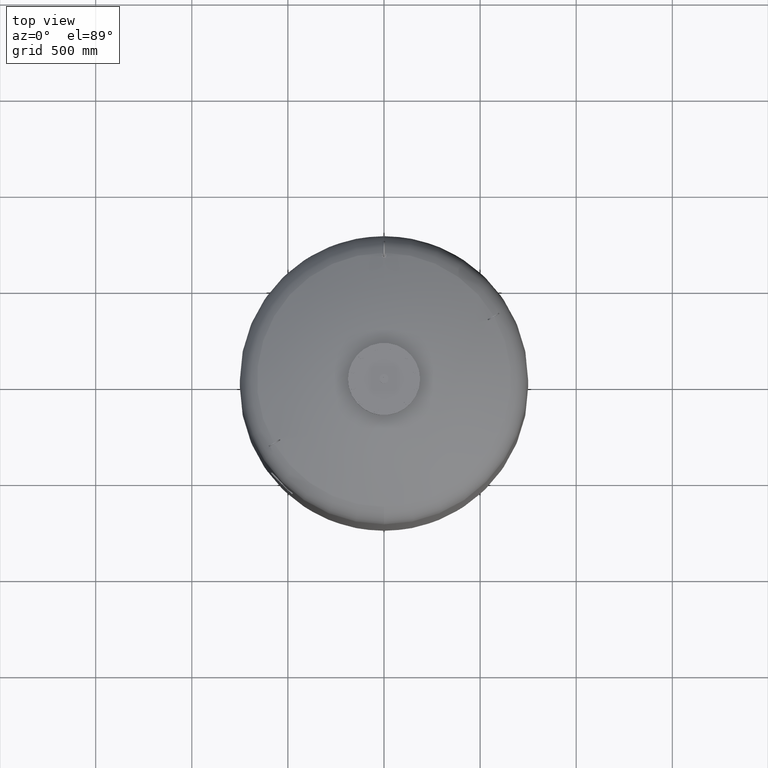
[diagram: clean part render]
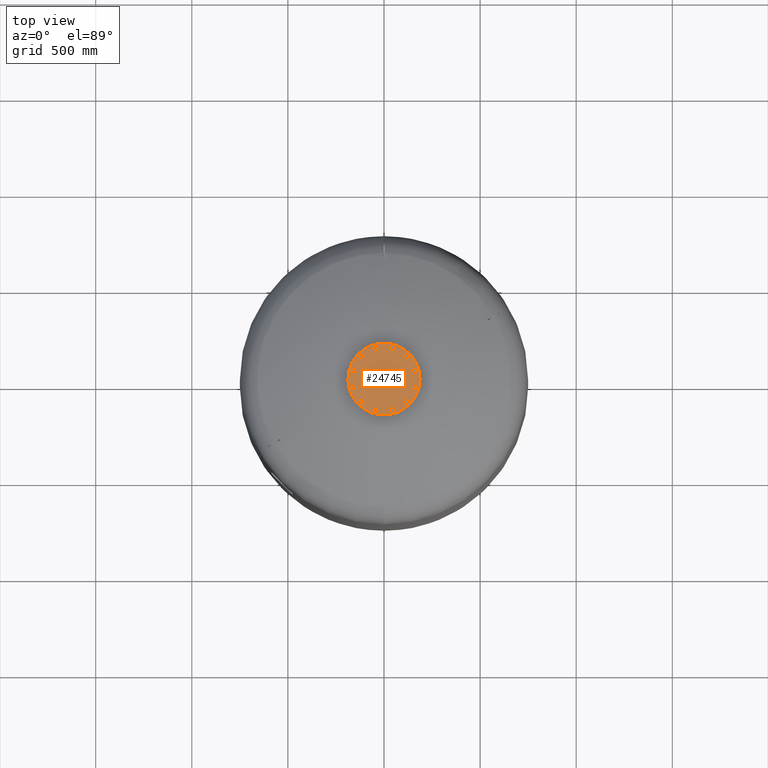
[diagram: same view with one face highlighted and labeled with its STEP entity id]
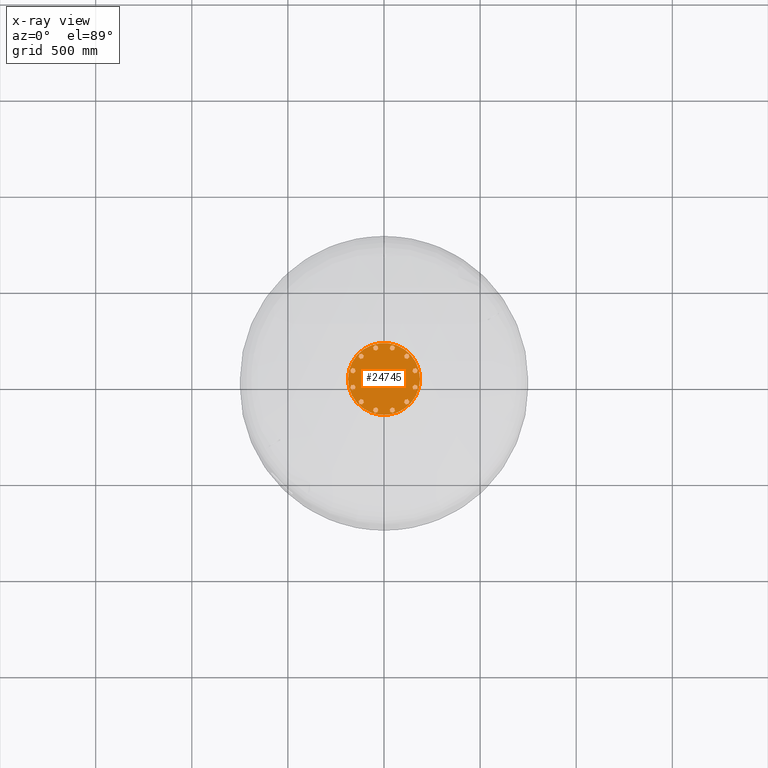
[diagram: x-ray of the same camera — body ghosted, the highlighted face saturated]
A machine part, top view. The second image highlights one B-rep face of the part: STEP entity #24745.
The next image is the same camera in x-ray: the body ghosted, the highlighted face saturated — about 0% of this face is hidden behind the body in this view.
In plain terms, the highlighted planar face has unit normal (0, 0, 1).
Its self-contained STEP definition (entity closure, byte-faithful):
#16983=CARTESIAN_POINT('',(-187.500000000000000,0.0,3056.0));
#16984=VERTEX_POINT('',#16983);
#17000=CARTESIAN_POINT('',(187.500000000000000,-2.296137E-014,3056.0));
#17001=VERTEX_POINT('',#17000);
#17008=CARTESIAN_POINT('',(0.0,0.0,3056.0));
#17009=DIRECTION('',(0.0,0.0,-1.0));
#17010=DIRECTION('',(-1.0,0.0,0.0));
#17011=AXIS2_PLACEMENT_3D('',#17008,#17009,#17010);
#17012=CIRCLE('',#17011,187.500000000000000);
#17013=EDGE_CURVE('',#17001,#16984,#17012,.T.);
#22239=CARTESIAN_POINT('',(157.729139400922860,30.104983413641008,3056.0));
#22240=VERTEX_POINT('',#22239);
#22241=CARTESIAN_POINT('',(148.288440171855850,40.247625971983268,3056.0));
#22242=VERTEX_POINT('',#22241);
#22243=CARTESIAN_POINT('',(157.729139400922860,30.104983413641008,3056.0));
#22244=DIRECTION('',(-0.681323780155013,0.731982176419128,0.0));
#22245=VECTOR('',#22244,13.856406460551090);
#22246=LINE('',#22243,#22245);
#22247=EDGE_CURVE('',#22240,#22242,#22246,.T.);
#22279=CARTESIAN_POINT('',(171.233275132485970,33.209547496330110,3056.0));
#22280=VERTEX_POINT('',#22279);
#22281=CARTESIAN_POINT('',(171.233275132485970,33.209547496330110,3056.0));
#22282=DIRECTION('',(-0.974577049973894,-0.224052613607123,0.0));
#22283=VECTOR('',#22282,13.856406460551119);
#22284=LINE('',#22281,#22283);
#22285=EDGE_CURVE('',#22280,#22240,#22284,.T.);
#22310=CARTESIAN_POINT('',(175.296711634982050,46.456754137361422,3056.0));
#22311=VERTEX_POINT('',#22310);
#22312=CARTESIAN_POINT('',(175.296711634982050,46.456754137361422,3056.0));
#22313=DIRECTION('',(-0.293253269818881,-0.956034790026249,0.0));
#22314=VECTOR('',#22313,13.856406460551076);
#22315=LINE('',#22312,#22314);
#22316=EDGE_CURVE('',#22311,#22280,#22315,.T.);
#22341=CARTESIAN_POINT('',(152.351876674351930,53.494832613014587,3056.0));
#22342=VERTEX_POINT('',#22341);
#22343=CARTESIAN_POINT('',(148.288440171855850,40.247625971983268,3056.0));
#22344=DIRECTION('',(0.293253269818881,0.956034790026249,0.0));
#22345=VECTOR('',#22344,13.856406460551083);
#22346=LINE('',#22343,#22345);
#22347=EDGE_CURVE('',#22242,#22342,#22346,.T.);
#22372=CARTESIAN_POINT('',(165.856012405915040,56.599396695703689,3056.0));
#22373=VERTEX_POINT('',#22372);
#22374=CARTESIAN_POINT('',(152.351876674351930,53.494832613014587,3056.0));
#22375=DIRECTION('',(0.974577049973894,0.224052613607123,0.0));
#22376=VECTOR('',#22375,13.856406460551119);
#22377=LINE('',#22374,#22376);
#22378=EDGE_CURVE('',#22342,#22373,#22377,.T.);
#22403=CARTESIAN_POINT('',(165.856012405915040,56.599396695703689,3056.0));
#22404=DIRECTION('',(0.681323780155012,-0.731982176419129,0.0));
#22405=VECTOR('',#22404,13.856406460551096);
#22406=LINE('',#22403,#22405);
#22407=EDGE_CURVE('',#22373,#22311,#22406,.T.);
#22439=CARTESIAN_POINT('',(121.544949931435720,104.936250117183760,3056.0));
#22440=VERTEX_POINT('',#22439);
#22441=CARTESIAN_POINT('',(108.297743290404380,108.999686619679820,3056.0));
#22442=VERTEX_POINT('',#22441);
#22443=CARTESIAN_POINT('',(121.544949931435720,104.936250117183760,3056.0));
#22444=DIRECTION('',(-0.956034790026250,0.293253269818880,0.0));
#22445=VECTOR('',#22444,13.856406460551101);
#22446=LINE('',#22443,#22445);
#22447=EDGE_CURVE('',#22440,#22442,#22446,.T.);
#22479=CARTESIAN_POINT('',(131.687592489777960,114.376949346250780,3056.0));
#22480=VERTEX_POINT('',#22479);
#22481=CARTESIAN_POINT('',(131.687592489777960,114.376949346250780,3056.0));
#22482=DIRECTION('',(-0.731982176419127,-0.681323780155014,0.0));
#22483=VECTOR('',#22482,13.856406460551080);
#22484=LINE('',#22481,#22483);
#22485=EDGE_CURVE('',#22480,#22440,#22484,.T.);
#22510=CARTESIAN_POINT('',(128.583028407088880,127.881085077813880,3056.0));
#22511=VERTEX_POINT('',#22510);
#22512=CARTESIAN_POINT('',(128.583028407088880,127.881085077813880,3056.0));
#22513=DIRECTION('',(0.224052613607122,-0.974577049973894,0.0));
#22514=VECTOR('',#22513,13.856406460551099);
#22515=LINE('',#22512,#22514);
#22516=EDGE_CURVE('',#22511,#22480,#22515,.T.);
#22541=CARTESIAN_POINT('',(105.193179207715300,122.503822351242900,3056.0));
#22542=VERTEX_POINT('',#22541);
#22543=CARTESIAN_POINT('',(108.297743290404380,108.999686619679820,3056.0));
#22544=DIRECTION('',(-0.224052613607122,0.974577049973894,0.0));
#22545=VECTOR('',#22544,13.856406460551087);
#22546=LINE('',#22543,#22545);
#22547=EDGE_CURVE('',#22442,#22542,#22546,.T.);
#22572=CARTESIAN_POINT('',(115.335821766057560,131.944521580309950,3056.0));
#22573=VERTEX_POINT('',#22572);
#22574=CARTESIAN_POINT('',(105.193179207715300,122.503822351242900,3056.0));
#22575=DIRECTION('',(0.731982176419127,0.681323780155014,0.0));
#22576=VECTOR('',#22575,13.856406460551121);
#22577=LINE('',#22574,#22576);
#22578=EDGE_CURVE('',#22542,#22573,#22577,.T.);
#22603=CARTESIAN_POINT('',(115.335821766057560,131.944521580309950,3056.0));
#22604=DIRECTION('',(0.956034790026249,-0.293253269818881,0.0));
#22605=VECTOR('',#22604,13.856406460551076);
#22606=LINE('',#22603,#22605);
#22607=EDGE_CURVE('',#22573,#22511,#22606,.T.);
#22639=CARTESIAN_POINT('',(52.792889283739193,151.649933345076730,3056.0));
#22640=VERTEX_POINT('',#22639);
#22641=CARTESIAN_POINT('',(39.288753552176118,148.545369262387680,3056.0));
#22642=VERTEX_POINT('',#22641);
#22643=CARTESIAN_POINT('',(52.792889283739193,151.649933345076730,3056.0));
#22644=DIRECTION('',(-0.974577049973894,-0.224052613607120,0.0));
#22645=VECTOR('',#22644,13.856406460551073);
#22646=LINE('',#22643,#22645);
#22647=EDGE_CURVE('',#22640,#22642,#22646,.T.);
#22679=CARTESIAN_POINT('',(56.856325786235274,164.897139986108100,3056.0));
#22680=VERTEX_POINT('',#22679);
#22681=CARTESIAN_POINT('',(56.856325786235274,164.897139986108100,3056.0));
#22682=DIRECTION('',(-0.293253269818881,-0.956034790026249,0.0));
#22683=VECTOR('',#22682,13.856406460551133);
#22684=LINE('',#22681,#22683);
#22685=EDGE_CURVE('',#22680,#22640,#22684,.T.);
#22710=CARTESIAN_POINT('',(47.415626557168267,175.039782544450330,3056.0));
#22711=VERTEX_POINT('',#22710);
#22712=CARTESIAN_POINT('',(47.415626557168267,175.039782544450330,3056.0));
#22713=DIRECTION('',(0.681323780155014,-0.731982176419128,0.0));
#22714=VECTOR('',#22713,13.856406460551069);
#22715=LINE('',#22712,#22714);
#22716=EDGE_CURVE('',#22711,#22680,#22715,.T.);
#22741=CARTESIAN_POINT('',(29.848054323109103,158.688011820729910,3056.0));
#22742=VERTEX_POINT('',#22741);
#22743=CARTESIAN_POINT('',(39.288753552176118,148.545369262387680,3056.0));
#22744=DIRECTION('',(-0.681323780155014,0.731982176419127,0.0));
#22745=VECTOR('',#22744,13.856406460551076);
#22746=LINE('',#22743,#22745);
#22747=EDGE_CURVE('',#22642,#22742,#22746,.T.);
#22772=CARTESIAN_POINT('',(33.911490825605156,171.935218461761250,3056.0));
#22773=VERTEX_POINT('',#22772);
#22774=CARTESIAN_POINT('',(29.848054323109103,158.688011820729910,3056.0));
#22775=DIRECTION('',(0.293253269818879,0.956034790026250,0.0));
#22776=VECTOR('',#22775,13.856406460551097);
#22777=LINE('',#22774,#22776);
#22778=EDGE_CURVE('',#22742,#22773,#22777,.T.);
#22803=CARTESIAN_POINT('',(33.911490825605156,171.935218461761250,3056.0));
#22804=DIRECTION('',(0.974577049973894,0.224052613607121,0.0));
#22805=VECTOR('',#22804,13.856406460551113);
#22806=LINE('',#22803,#22805);
#22807=EDGE_CURVE('',#22773,#22711,#22806,.T.);
#22839=CARTESIAN_POINT('',(-30.104983413641008,157.729139400922860,3056.0));
#22840=VERTEX_POINT('',#22839);
#22841=CARTESIAN_POINT('',(-40.247625971983268,148.288440171855850,3056.0));
#22842=VERTEX_POINT('',#22841);
#22843=CARTESIAN_POINT('',(-30.104983413641008,157.729139400922860,3056.0));
#22844=DIRECTION('',(-0.731982176419128,-0.681323780155013,0.0));
#22845=VECTOR('',#22844,13.856406460551090);
#22846=LINE('',#22843,#22845);
#22847=EDGE_CURVE('',#22840,#22842,#22846,.T.);
#22879=CARTESIAN_POINT('',(-33.209547496330110,171.233275132485970,3056.0));
#22880=VERTEX_POINT('',#22879);
#22881=CARTESIAN_POINT('',(-33.209547496330110,171.233275132485970,3056.0));
#22882=DIRECTION('',(0.224052613607123,-0.974577049973894,0.0));
#22883=VECTOR('',#22882,13.856406460551119);
#22884=LINE('',#22881,#22883);
#22885=EDGE_CURVE('',#22880,#22840,#22884,.T.);
#22910=CARTESIAN_POINT('',(-46.456754137361422,175.296711634982050,3056.0));
#22911=VERTEX_POINT('',#22910);
#22912=CARTESIAN_POINT('',(-46.456754137361422,175.296711634982050,3056.0));
#22913=DIRECTION('',(0.956034790026249,-0.293253269818881,0.0));
#22914=VECTOR('',#22913,13.856406460551076);
#22915=LINE('',#22912,#22914);
#22916=EDGE_CURVE('',#22911,#22880,#22915,.T.);
#22941=CARTESIAN_POINT('',(-53.494832613014587,152.351876674351930,3056.0));
#22942=VERTEX_POINT('',#22941);
#22943=CARTESIAN_POINT('',(-40.247625971983268,148.288440171855850,3056.0));
#22944=DIRECTION('',(-0.956034790026249,0.293253269818881,0.0));
#22945=VECTOR('',#22944,13.856406460551083);
#22946=LINE('',#22943,#22945);
#22947=EDGE_CURVE('',#22842,#22942,#22946,.T.);
#22972=CARTESIAN_POINT('',(-56.599396695703689,165.856012405915040,3056.0));
#22973=VERTEX_POINT('',#22972);
#22974=CARTESIAN_POINT('',(-53.494832613014587,152.351876674351930,3056.0));
#22975=DIRECTION('',(-0.224052613607123,0.974577049973894,0.0));
#22976=VECTOR('',#22975,13.856406460551119);
#22977=LINE('',#22974,#22976);
#22978=EDGE_CURVE('',#22942,#22973,#22977,.T.);
#23003=CARTESIAN_POINT('',(-56.599396695703689,165.856012405915040,3056.0));
#23004=DIRECTION('',(0.731982176419129,0.681323780155012,0.0));
#23005=VECTOR('',#23004,13.856406460551096);
#23006=LINE('',#23003,#23005);
#23007=EDGE_CURVE('',#22973,#22911,#23006,.T.);
#23039=CARTESIAN_POINT('',(-104.936250117183700,121.544949931435750,3056.0));
#23040=VERTEX_POINT('',#23039);
#23041=CARTESIAN_POINT('',(-108.999686619679760,108.297743290404440,3056.0));
#23042=VERTEX_POINT('',#23041);
#23043=CARTESIAN_POINT('',(-104.936250117183700,121.544949931435750,3056.0));
#23044=DIRECTION('',(-0.293253269818880,-0.956034790026249,0.0));
#23045=VECTOR('',#23044,13.856406460551073);
#23046=LINE('',#23043,#23045);
#23047=EDGE_CURVE('',#23040,#23042,#23046,.T.);
#23079=CARTESIAN_POINT('',(-114.376949346250730,131.687592489778010,3056.0));
#23080=VERTEX_POINT('',#23079);
#23081=CARTESIAN_POINT('',(-114.376949346250730,131.687592489778010,3056.0));
#23082=DIRECTION('',(0.681323780155013,-0.731982176419128,0.0));
#23083=VECTOR('',#23082,13.856406460551101);
#23084=LINE('',#23081,#23083);
#23085=EDGE_CURVE('',#23080,#23040,#23084,.T.);
#23110=CARTESIAN_POINT('',(-127.881085077813810,128.583028407088930,3056.0));
#23111=VERTEX_POINT('',#23110);
#23112=CARTESIAN_POINT('',(-127.881085077813810,128.583028407088930,3056.0));
#23113=DIRECTION('',(0.974577049973894,0.224052613607122,0.0));
#23114=VECTOR('',#23113,13.856406460551087);
#23115=LINE('',#23112,#23114);
#23116=EDGE_CURVE('',#23111,#23080,#23115,.T.);
#23141=CARTESIAN_POINT('',(-122.503822351242850,105.193179207715360,3056.0));
#23142=VERTEX_POINT('',#23141);
#23143=CARTESIAN_POINT('',(-108.999686619679760,108.297743290404440,3056.0));
#23144=DIRECTION('',(-0.974577049973894,-0.224052613607122,0.0));
#23145=VECTOR('',#23144,13.856406460551087);
#23146=LINE('',#23143,#23145);
#23147=EDGE_CURVE('',#23042,#23142,#23146,.T.);
#23172=CARTESIAN_POINT('',(-131.944521580309900,115.335821766057620,3056.0));
#23173=VERTEX_POINT('',#23172);
#23174=CARTESIAN_POINT('',(-122.503822351242850,105.193179207715360,3056.0));
#23175=DIRECTION('',(-0.681323780155014,0.731982176419127,0.0));
#23176=VECTOR('',#23175,13.856406460551121);
#23177=LINE('',#23174,#23176);
#23178=EDGE_CURVE('',#23142,#23173,#23177,.T.);
#23203=CARTESIAN_POINT('',(-131.944521580309900,115.335821766057620,3056.0));
#23204=DIRECTION('',(0.293253269818882,0.956034790026249,0.0));
#23205=VECTOR('',#23204,13.856406460551081);
#23206=LINE('',#23203,#23205);
#23207=EDGE_CURVE('',#23173,#23111,#23206,.T.);
#23239=CARTESIAN_POINT('',(-151.649933345076730,52.792889283739214,3056.0));
#23240=VERTEX_POINT('',#23239);
#23241=CARTESIAN_POINT('',(-148.545369262387650,39.288753552176125,3056.0));
#23242=VERTEX_POINT('',#23241);
#23243=CARTESIAN_POINT('',(-151.649933345076730,52.792889283739214,3056.0));
#23244=DIRECTION('',(0.224052613607122,-0.974577049973894,0.0));
#23245=VECTOR('',#23244,13.856406460551092);
#23246=LINE('',#23243,#23245);
#23247=EDGE_CURVE('',#23240,#23242,#23246,.T.);
#23279=CARTESIAN_POINT('',(-164.897139986108100,56.856325786235296,3056.0));
#23280=VERTEX_POINT('',#23279);
#23281=CARTESIAN_POINT('',(-164.897139986108100,56.856325786235296,3056.0));
#23282=DIRECTION('',(0.956034790026249,-0.293253269818881,0.0));
#23283=VECTOR('',#23282,13.856406460551133);
#23284=LINE('',#23281,#23283);
#23285=EDGE_CURVE('',#23280,#23240,#23284,.T.);
#23310=CARTESIAN_POINT('',(-175.039782544450300,47.415626557168260,3056.0));
#23311=VERTEX_POINT('',#23310);
#23312=CARTESIAN_POINT('',(-175.039782544450300,47.415626557168260,3056.0));
#23313=DIRECTION('',(0.731982176419126,0.681323780155016,0.0));
#23314=VECTOR('',#23313,13.856406460551069);
#23315=LINE('',#23312,#23314);
#23316=EDGE_CURVE('',#23311,#23280,#23315,.T.);
#23341=CARTESIAN_POINT('',(-158.688011820729910,29.848054323109110,3056.0));
#23342=VERTEX_POINT('',#23341);
#23343=CARTESIAN_POINT('',(-148.545369262387650,39.288753552176125,3056.0));
#23344=DIRECTION('',(-0.731982176419128,-0.681323780155013,0.0));
#23345=VECTOR('',#23344,13.856406460551096);
#23346=LINE('',#23343,#23345);
#23347=EDGE_CURVE('',#23242,#23342,#23346,.T.);
#23372=CARTESIAN_POINT('',(-171.935218461761250,33.911490825605171,3056.0));
#23373=VERTEX_POINT('',#23372);
#23374=CARTESIAN_POINT('',(-158.688011820729910,29.848054323109110,3056.0));
#23375=DIRECTION('',(-0.956034790026250,0.293253269818880,0.0));
#23376=VECTOR('',#23375,13.856406460551101);
#23377=LINE('',#23374,#23376);
#23378=EDGE_CURVE('',#23342,#23373,#23377,.T.);
#23403=CARTESIAN_POINT('',(-171.935218461761250,33.911490825605171,3056.0));
#23404=DIRECTION('',(-0.224052613607120,0.974577049973894,0.0));
#23405=VECTOR('',#23404,13.856406460551087);
#23406=LINE('',#23403,#23405);
#23407=EDGE_CURVE('',#23373,#23311,#23406,.T.);
#23439=CARTESIAN_POINT('',(-157.729139400922860,-30.104983413640987,3056.0));
#23440=VERTEX_POINT('',#23439);
#23441=CARTESIAN_POINT('',(-148.288440171855850,-40.247625971983247,3056.0));
#23442=VERTEX_POINT('',#23441);
#23443=CARTESIAN_POINT('',(-157.729139400922860,-30.104983413640987,3056.0));
#23444=DIRECTION('',(0.681323780155013,-0.731982176419128,0.0));
#23445=VECTOR('',#23444,13.856406460551090);
#23446=LINE('',#23443,#23445);
#23447=EDGE_CURVE('',#23440,#23442,#23446,.T.);
#23479=CARTESIAN_POINT('',(-171.233275132486000,-33.209547496330096,3056.0));
#23480=VERTEX_POINT('',#23479);
#23481=CARTESIAN_POINT('',(-171.233275132486000,-33.209547496330096,3056.0));
#23482=DIRECTION('',(0.974577049973894,0.224052613607123,0.0));
#23483=VECTOR('',#23482,13.856406460551147);
#23484=LINE('',#23481,#23483);
#23485=EDGE_CURVE('',#23480,#23440,#23484,.T.);
#23510=CARTESIAN_POINT('',(-175.296711634982050,-46.456754137361401,3056.0));
#23511=VERTEX_POINT('',#23510);
#23512=CARTESIAN_POINT('',(-175.296711634982050,-46.456754137361401,3056.0));
#23513=DIRECTION('',(0.293253269818880,0.956034790026250,0.0));
#23514=VECTOR('',#23513,13.856406460551062);
#23515=LINE('',#23512,#23514);
#23516=EDGE_CURVE('',#23511,#23480,#23515,.T.);
#23541=CARTESIAN_POINT('',(-152.351876674351960,-53.494832613014580,3056.0));
#23542=VERTEX_POINT('',#23541);
#23543=CARTESIAN_POINT('',(-148.288440171855850,-40.247625971983247,3056.0));
#23544=DIRECTION('',(-0.293253269818883,-0.956034790026249,0.0));
#23545=VECTOR('',#23544,13.856406460551106);
#23546=LINE('',#23543,#23545);
#23547=EDGE_CURVE('',#23442,#23542,#23546,.T.);
#23572=CARTESIAN_POINT('',(-165.856012405915070,-56.599396695703646,3056.0));
#23573=VERTEX_POINT('',#23572);
#23574=CARTESIAN_POINT('',(-152.351876674351960,-53.494832613014580,3056.0));
#23575=DIRECTION('',(-0.974577049973894,-0.224052613607121,0.0));
#23576=VECTOR('',#23575,13.856406460551110);
#23577=LINE('',#23574,#23576);
#23578=EDGE_CURVE('',#23542,#23573,#23577,.T.);
#23603=CARTESIAN_POINT('',(-165.856012405915070,-56.599396695703646,3056.0));
#23604=DIRECTION('',(-0.681323780155012,0.731982176419129,0.0));
#23605=VECTOR('',#23604,13.856406460551062);
#23606=LINE('',#23603,#23605);
#23607=EDGE_CURVE('',#23573,#23511,#23606,.T.);
#23639=CARTESIAN_POINT('',(-121.544949931435750,-104.936250117183680,3056.0));
#23640=VERTEX_POINT('',#23639);
#23641=CARTESIAN_POINT('',(-108.297743290404440,-108.999686619679760,3056.0));
#23642=VERTEX_POINT('',#23641);
#23643=CARTESIAN_POINT('',(-121.544949931435750,-104.936250117183680,3056.0));
#23644=DIRECTION('',(0.956034790026249,-0.293253269818882,0.0));
#23645=VECTOR('',#23644,13.856406460551081);
#23646=LINE('',#23643,#23645);
#23647=EDGE_CURVE('',#23640,#23642,#23646,.T.);
#23679=CARTESIAN_POINT('',(-131.687592489778010,-114.376949346250730,3056.0));
#23680=VERTEX_POINT('',#23679);
#23681=CARTESIAN_POINT('',(-131.687592489778010,-114.376949346250730,3056.0));
#23682=DIRECTION('',(0.731982176419127,0.681323780155014,0.0));
#23683=VECTOR('',#23682,13.856406460551121);
#23684=LINE('',#23681,#23683);
#23685=EDGE_CURVE('',#23680,#23640,#23684,.T.);
#23710=CARTESIAN_POINT('',(-128.583028407088930,-127.881085077813790,3056.0));
#23711=VERTEX_POINT('',#23710);
#23712=CARTESIAN_POINT('',(-128.583028407088930,-127.881085077813790,3056.0));
#23713=DIRECTION('',(-0.224052613607122,0.974577049973894,0.0));
#23714=VECTOR('',#23713,13.856406460551071);
#23715=LINE('',#23712,#23714);
#23716=EDGE_CURVE('',#23711,#23680,#23715,.T.);
#23741=CARTESIAN_POINT('',(-105.193179207715360,-122.503822351242850,3056.0));
#23742=VERTEX_POINT('',#23741);
#23743=CARTESIAN_POINT('',(-108.297743290404440,-108.999686619679760,3056.0));
#23744=DIRECTION('',(0.224052613607122,-0.974577049973894,0.0));
#23745=VECTOR('',#23744,13.856406460551087);
#23746=LINE('',#23743,#23745);
#23747=EDGE_CURVE('',#23642,#23742,#23746,.T.);
#23772=CARTESIAN_POINT('',(-115.335821766057620,-131.944521580309900,3056.0));
#23773=VERTEX_POINT('',#23772);
#23774=CARTESIAN_POINT('',(-105.193179207715360,-122.503822351242850,3056.0));
#23775=DIRECTION('',(-0.731982176419127,-0.681323780155014,0.0));
#23776=VECTOR('',#23775,13.856406460551121);
#23777=LINE('',#23774,#23776);
#23778=EDGE_CURVE('',#23742,#23773,#23777,.T.);
#23803=CARTESIAN_POINT('',(-115.335821766057620,-131.944521580309900,3056.0));
#23804=DIRECTION('',(-0.956034790026249,0.293253269818883,0.0));
#23805=VECTOR('',#23804,13.856406460551085);
#23806=LINE('',#23803,#23805);
#23807=EDGE_CURVE('',#23773,#23711,#23806,.T.);
#23839=CARTESIAN_POINT('',(-52.792889283739228,-151.649933345076730,3056.0));
#23840=VERTEX_POINT('',#23839);
#23841=CARTESIAN_POINT('',(-39.288753552176132,-148.545369262387680,3056.0));
#23842=VERTEX_POINT('',#23841);
#23843=CARTESIAN_POINT('',(-52.792889283739228,-151.649933345076730,3056.0));
#23844=DIRECTION('',(0.974577049973894,0.224052613607120,0.0));
#23845=VECTOR('',#23844,13.856406460551094);
#23846=LINE('',#23843,#23845);
#23847=EDGE_CURVE('',#23840,#23842,#23846,.T.);
#23879=CARTESIAN_POINT('',(-56.856325786235296,-164.897139986108100,3056.0));
#23880=VERTEX_POINT('',#23879);
#23881=CARTESIAN_POINT('',(-56.856325786235296,-164.897139986108100,3056.0));
#23882=DIRECTION('',(0.293253269818880,0.956034790026250,0.0));
#23883=VECTOR('',#23882,13.856406460551129);
#23884=LINE('',#23881,#23883);
#23885=EDGE_CURVE('',#23880,#23840,#23884,.T.);
#23910=CARTESIAN_POINT('',(-47.415626557168281,-175.039782544450300,3056.0));
#23911=VERTEX_POINT('',#23910);
#23912=CARTESIAN_POINT('',(-47.415626557168281,-175.039782544450300,3056.0));
#23913=DIRECTION('',(-0.681323780155015,0.731982176419126,0.0));
#23914=VECTOR('',#23913,13.856406460551055);
#23915=LINE('',#23912,#23914);
#23916=EDGE_CURVE('',#23911,#23880,#23915,.T.);
#23941=CARTESIAN_POINT('',(-29.848054323109121,-158.688011820729910,3056.0));
#23942=VERTEX_POINT('',#23941);
#23943=CARTESIAN_POINT('',(-39.288753552176132,-148.545369262387680,3056.0));
#23944=DIRECTION('',(0.681323780155014,-0.731982176419127,0.0));
#23945=VECTOR('',#23944,13.856406460551073);
#23946=LINE('',#23943,#23945);
#23947=EDGE_CURVE('',#23842,#23942,#23946,.T.);
#23972=CARTESIAN_POINT('',(-33.911490825605199,-171.935218461761280,3056.0));
#23973=VERTEX_POINT('',#23972);
#23974=CARTESIAN_POINT('',(-29.848054323109121,-158.688011820729910,3056.0));
#23975=DIRECTION('',(-0.293253269818880,-0.956034790026249,0.0));
#23976=VECTOR('',#23975,13.856406460551133);
#23977=LINE('',#23974,#23976);
#23978=EDGE_CURVE('',#23942,#23973,#23977,.T.);
#24003=CARTESIAN_POINT('',(-33.911490825605199,-171.935218461761280,3056.0));
#24004=DIRECTION('',(-0.974577049973895,-0.224052613607118,0.0));
#24005=VECTOR('',#24004,13.856406460551074);
#24006=LINE('',#24003,#24005);
#24007=EDGE_CURVE('',#23973,#23911,#24006,.T.);
#24039=CARTESIAN_POINT('',(30.104983413640952,-157.729139400922890,3056.0));
#24040=VERTEX_POINT('',#24039);
#24041=CARTESIAN_POINT('',(40.247625971983211,-148.288440171855880,3056.0));
#24042=VERTEX_POINT('',#24041);
#24043=CARTESIAN_POINT('',(30.104983413640952,-157.729139400922890,3056.0));
#24044=DIRECTION('',(0.731982176419128,0.681323780155013,0.0));
#24045=VECTOR('',#24044,13.856406460551090);
#24046=LINE('',#24043,#24045);
#24047=EDGE_CURVE('',#24040,#24042,#24046,.T.);
#24079=CARTESIAN_POINT('',(33.209547496330039,-171.233275132486000,3056.0));
#24080=VERTEX_POINT('',#24079);
#24081=CARTESIAN_POINT('',(33.209547496330039,-171.233275132486000,3056.0));
#24082=DIRECTION('',(-0.224052613607122,0.974577049973894,0.0));
#24083=VECTOR('',#24082,13.856406460551115);
#24084=LINE('',#24081,#24083);
#24085=EDGE_CURVE('',#24080,#24040,#24084,.T.);
#24110=CARTESIAN_POINT('',(46.456754137361351,-175.296711634982070,3056.0));
#24111=VERTEX_POINT('',#24110);
#24112=CARTESIAN_POINT('',(46.456754137361351,-175.296711634982070,3056.0));
#24113=DIRECTION('',(-0.956034790026249,0.293253269818881,0.0));
#24114=VECTOR('',#24113,13.856406460551076);
#24115=LINE('',#24112,#24114);
#24116=EDGE_CURVE('',#24111,#24080,#24115,.T.);
#24141=CARTESIAN_POINT('',(53.494832613014523,-152.351876674351960,3056.0));
#24142=VERTEX_POINT('',#24141);
#24143=CARTESIAN_POINT('',(40.247625971983211,-148.288440171855880,3056.0));
#24144=DIRECTION('',(0.956034790026249,-0.293253269818881,0.0));
#24145=VECTOR('',#24144,13.856406460551076);
#24146=LINE('',#24143,#24145);
#24147=EDGE_CURVE('',#24042,#24142,#24146,.T.);
#24172=CARTESIAN_POINT('',(56.599396695703625,-165.856012405915070,3056.0));
#24173=VERTEX_POINT('',#24172);
#24174=CARTESIAN_POINT('',(53.494832613014523,-152.351876674351960,3056.0));
#24175=DIRECTION('',(0.224052613607123,-0.974577049973894,0.0));
#24176=VECTOR('',#24175,13.856406460551119);
#24177=LINE('',#24174,#24176);
#24178=EDGE_CURVE('',#24142,#24173,#24177,.T.);
#24203=CARTESIAN_POINT('',(56.599396695703625,-165.856012405915070,3056.0));
#24204=DIRECTION('',(-0.731982176419129,-0.681323780155012,0.0));
#24205=VECTOR('',#24204,13.856406460551101);
#24206=LINE('',#24203,#24205);
#24207=EDGE_CURVE('',#24173,#24111,#24206,.T.);
#24239=CARTESIAN_POINT('',(104.936250117183660,-121.544949931435800,3056.0));
#24240=VERTEX_POINT('',#24239);
#24241=CARTESIAN_POINT('',(108.999686619679750,-108.297743290404470,3056.0));
#24242=VERTEX_POINT('',#24241);
#24243=CARTESIAN_POINT('',(104.936250117183660,-121.544949931435800,3056.0));
#24244=DIRECTION('',(0.293253269818882,0.956034790026249,0.0));
#24245=VECTOR('',#24244,13.856406460551094);
#24246=LINE('',#24243,#24245);
#24247=EDGE_CURVE('',#24240,#24242,#24246,.T.);
#24279=CARTESIAN_POINT('',(114.376949346250710,-131.687592489778040,3056.0));
#24280=VERTEX_POINT('',#24279);
#24281=CARTESIAN_POINT('',(114.376949346250710,-131.687592489778040,3056.0));
#24282=DIRECTION('',(-0.681323780155015,0.731982176419126,0.0));
#24283=VECTOR('',#24282,13.856406460551110);
#24284=LINE('',#24281,#24283);
#24285=EDGE_CURVE('',#24280,#24240,#24284,.T.);
#24310=CARTESIAN_POINT('',(127.881085077813760,-128.583028407088960,3056.0));
#24311=VERTEX_POINT('',#24310);
#24312=CARTESIAN_POINT('',(127.881085077813760,-128.583028407088960,3056.0));
#24313=DIRECTION('',(-0.974577049973894,-0.224052613607122,0.0));
#24314=VECTOR('',#24313,13.856406460551058);
#24315=LINE('',#24312,#24314);
#24316=EDGE_CURVE('',#24311,#24280,#24315,.T.);
#24341=CARTESIAN_POINT('',(122.503822351242830,-105.193179207715390,3056.0));
#24342=VERTEX_POINT('',#24341);
#24343=CARTESIAN_POINT('',(108.999686619679750,-108.297743290404470,3056.0));
#24344=DIRECTION('',(0.974577049973894,0.224052613607122,0.0));
#24345=VECTOR('',#24344,13.856406460551087);
#24346=LINE('',#24343,#24345);
#24347=EDGE_CURVE('',#24242,#24342,#24346,.T.);
#24372=CARTESIAN_POINT('',(131.944521580309870,-115.335821766057650,3056.0));
#24373=VERTEX_POINT('',#24372);
#24374=CARTESIAN_POINT('',(122.503822351242830,-105.193179207715390,3056.0));
#24375=DIRECTION('',(0.681323780155014,-0.731982176419127,0.0));
#24376=VECTOR('',#24375,13.856406460551110);
#24377=LINE('',#24374,#24376);
#24378=EDGE_CURVE('',#24342,#24373,#24377,.T.);
#24403=CARTESIAN_POINT('',(131.944521580309870,-115.335821766057650,3056.0));
#24404=DIRECTION('',(-0.293253269818883,-0.956034790026249,0.0));
#24405=VECTOR('',#24404,13.856406460551085);
#24406=LINE('',#24403,#24405);
#24407=EDGE_CURVE('',#24373,#24311,#24406,.T.);
#24439=CARTESIAN_POINT('',(151.649933345076730,-52.792889283739228,3056.0));
#24440=VERTEX_POINT('',#24439);
#24441=CARTESIAN_POINT('',(148.545369262387650,-39.288753552176139,3056.0));
#24442=VERTEX_POINT('',#24441);
#24443=CARTESIAN_POINT('',(151.649933345076730,-52.792889283739228,3056.0));
#24444=DIRECTION('',(-0.224052613607122,0.974577049973894,0.0));
#24445=VECTOR('',#24444,13.856406460551092);
#24446=LINE('',#24443,#24445);
#24447=EDGE_CURVE('',#24440,#24442,#24446,.T.);
#24479=CARTESIAN_POINT('',(164.897139986108070,-56.856325786235303,3056.0));
#24480=VERTEX_POINT('',#24479);
#24481=CARTESIAN_POINT('',(164.897139986108070,-56.856325786235303,3056.0));
#24482=DIRECTION('',(-0.956034790026249,0.293253269818881,0.0));
#24483=VECTOR('',#24482,13.856406460551105);
#24484=LINE('',#24481,#24483);
#24485=EDGE_CURVE('',#24480,#24440,#24484,.T.);
#24510=CARTESIAN_POINT('',(175.039782544450300,-47.415626557168295,3056.0));
#24511=VERTEX_POINT('',#24510);
#24512=CARTESIAN_POINT('',(175.039782544450300,-47.415626557168295,3056.0));
#24513=DIRECTION('',(-0.731982176419128,-0.681323780155014,0.0));
#24514=VECTOR('',#24513,13.856406460551069);
#24515=LINE('',#24512,#24514);
#24516=EDGE_CURVE('',#24511,#24480,#24515,.T.);
#24541=CARTESIAN_POINT('',(158.688011820729910,-29.848054323109132,3056.0));
#24542=VERTEX_POINT('',#24541);
#24543=CARTESIAN_POINT('',(148.545369262387650,-39.288753552176139,3056.0));
#24544=DIRECTION('',(0.731982176419128,0.681323780155013,0.0));
#24545=VECTOR('',#24544,13.856406460551090);
#24546=LINE('',#24543,#24545);
#24547=EDGE_CURVE('',#24442,#24542,#24546,.T.);
#24572=CARTESIAN_POINT('',(171.935218461761250,-33.911490825605206,3056.0));
#24573=VERTEX_POINT('',#24572);
#24574=CARTESIAN_POINT('',(158.688011820729910,-29.848054323109132,3056.0));
#24575=DIRECTION('',(0.956034790026249,-0.293253269818881,0.0));
#24576=VECTOR('',#24575,13.856406460551105);
#24577=LINE('',#24574,#24576);
#24578=EDGE_CURVE('',#24542,#24573,#24577,.T.);
#24603=CARTESIAN_POINT('',(171.935218461761250,-33.911490825605206,3056.0));
#24604=DIRECTION('',(0.224052613607120,-0.974577049973894,0.0));
#24605=VECTOR('',#24604,13.856406460551087);
#24606=LINE('',#24603,#24605);
#24607=EDGE_CURVE('',#24573,#24511,#24606,.T.);
#24634=CARTESIAN_POINT('',(-93.750000000000000,-7.888609E-031,3056.0));
#24635=DIRECTION('',(0.0,0.0,1.0));
#24636=DIRECTION('',(0.0,1.0,0.0));
#24637=AXIS2_PLACEMENT_3D('',#24634,#24635,#24636);
#24638=PLANE('',#24637);
#24639=CARTESIAN_POINT('',(0.0,0.0,3056.0));
#24640=DIRECTION('',(0.0,0.0,-1.0));
#24641=DIRECTION('',(-1.0,0.0,0.0));
#24642=AXIS2_PLACEMENT_3D('',#24639,#24640,#24641);
#24643=CIRCLE('',#24642,187.500000000000000);
#24644=EDGE_CURVE('',#16984,#17001,#24643,.T.);
#24645=ORIENTED_EDGE('',*,*,#24644,.F.);
#24646=ORIENTED_EDGE('',*,*,#17013,.F.);
#24647=EDGE_LOOP('',(#24645,#24646));
#24648=FACE_OUTER_BOUND('',#24647,.T.);
#24649=ORIENTED_EDGE('',*,*,#22247,.T.);
#24650=ORIENTED_EDGE('',*,*,#22347,.T.);
#24651=ORIENTED_EDGE('',*,*,#22378,.T.);
#24652=ORIENTED_EDGE('',*,*,#22407,.T.);
#24653=ORIENTED_EDGE('',*,*,#22316,.T.);
#24654=ORIENTED_EDGE('',*,*,#22285,.T.);
#24655=EDGE_LOOP('',(#24649,#24650,#24651,#24652,#24653,#24654));
#24656=FACE_BOUND('',#24655,.T.);
#24657=ORIENTED_EDGE('',*,*,#22447,.T.);
#24658=ORIENTED_EDGE('',*,*,#22547,.T.);
#24659=ORIENTED_EDGE('',*,*,#22578,.T.);
#24660=ORIENTED_EDGE('',*,*,#22607,.T.);
#24661=ORIENTED_EDGE('',*,*,#22516,.T.);
#24662=ORIENTED_EDGE('',*,*,#22485,.T.);
#24663=EDGE_LOOP('',(#24657,#24658,#24659,#24660,#24661,#24662));
#24664=FACE_BOUND('',#24663,.T.);
#24665=ORIENTED_EDGE('',*,*,#22647,.T.);
#24666=ORIENTED_EDGE('',*,*,#22747,.T.);
#24667=ORIENTED_EDGE('',*,*,#22778,.T.);
#24668=ORIENTED_EDGE('',*,*,#22807,.T.);
#24669=ORIENTED_EDGE('',*,*,#22716,.T.);
#24670=ORIENTED_EDGE('',*,*,#22685,.T.);
#24671=EDGE_LOOP('',(#24665,#24666,#24667,#24668,#24669,#24670));
#24672=FACE_BOUND('',#24671,.T.);
#24673=ORIENTED_EDGE('',*,*,#22847,.T.);
#24674=ORIENTED_EDGE('',*,*,#22947,.T.);
#24675=ORIENTED_EDGE('',*,*,#22978,.T.);
#24676=ORIENTED_EDGE('',*,*,#23007,.T.);
#24677=ORIENTED_EDGE('',*,*,#22916,.T.);
#24678=ORIENTED_EDGE('',*,*,#22885,.T.);
#24679=EDGE_LOOP('',(#24673,#24674,#24675,#24676,#24677,#24678));
#24680=FACE_BOUND('',#24679,.T.);
#24681=ORIENTED_EDGE('',*,*,#23047,.T.);
#24682=ORIENTED_EDGE('',*,*,#23147,.T.);
#24683=ORIENTED_EDGE('',*,*,#23178,.T.);
#24684=ORIENTED_EDGE('',*,*,#23207,.T.);
#24685=ORIENTED_EDGE('',*,*,#23116,.T.);
#24686=ORIENTED_EDGE('',*,*,#23085,.T.);
#24687=EDGE_LOOP('',(#24681,#24682,#24683,#24684,#24685,#24686));
#24688=FACE_BOUND('',#24687,.T.);
#24689=ORIENTED_EDGE('',*,*,#23247,.T.);
#24690=ORIENTED_EDGE('',*,*,#23347,.T.);
#24691=ORIENTED_EDGE('',*,*,#23378,.T.);
#24692=ORIENTED_EDGE('',*,*,#23407,.T.);
#24693=ORIENTED_EDGE('',*,*,#23316,.T.);
#24694=ORIENTED_EDGE('',*,*,#23285,.T.);
#24695=EDGE_LOOP('',(#24689,#24690,#24691,#24692,#24693,#24694));
#24696=FACE_BOUND('',#24695,.T.);
#24697=ORIENTED_EDGE('',*,*,#23447,.T.);
#24698=ORIENTED_EDGE('',*,*,#23547,.T.);
#24699=ORIENTED_EDGE('',*,*,#23578,.T.);
#24700=ORIENTED_EDGE('',*,*,#23607,.T.);
#24701=ORIENTED_EDGE('',*,*,#23516,.T.);
#24702=ORIENTED_EDGE('',*,*,#23485,.T.);
#24703=EDGE_LOOP('',(#24697,#24698,#24699,#24700,#24701,#24702));
#24704=FACE_BOUND('',#24703,.T.);
#24705=ORIENTED_EDGE('',*,*,#23647,.T.);
#24706=ORIENTED_EDGE('',*,*,#23747,.T.);
#24707=ORIENTED_EDGE('',*,*,#23778,.T.);
#24708=ORIENTED_EDGE('',*,*,#23807,.T.);
#24709=ORIENTED_EDGE('',*,*,#23716,.T.);
#24710=ORIENTED_EDGE('',*,*,#23685,.T.);
#24711=EDGE_LOOP('',(#24705,#24706,#24707,#24708,#24709,#24710));
#24712=FACE_BOUND('',#24711,.T.);
#24713=ORIENTED_EDGE('',*,*,#23847,.T.);
#24714=ORIENTED_EDGE('',*,*,#23947,.T.);
#24715=ORIENTED_EDGE('',*,*,#23978,.T.);
#24716=ORIENTED_EDGE('',*,*,#24007,.T.);
#24717=ORIENTED_EDGE('',*,*,#23916,.T.);
#24718=ORIENTED_EDGE('',*,*,#23885,.T.);
#24719=EDGE_LOOP('',(#24713,#24714,#24715,#24716,#24717,#24718));
#24720=FACE_BOUND('',#24719,.T.);
#24721=ORIENTED_EDGE('',*,*,#24047,.T.);
#24722=ORIENTED_EDGE('',*,*,#24147,.T.);
#24723=ORIENTED_EDGE('',*,*,#24178,.T.);
#24724=ORIENTED_EDGE('',*,*,#24207,.T.);
#24725=ORIENTED_EDGE('',*,*,#24116,.T.);
#24726=ORIENTED_EDGE('',*,*,#24085,.T.);
#24727=EDGE_LOOP('',(#24721,#24722,#24723,#24724,#24725,#24726));
#24728=FACE_BOUND('',#24727,.T.);
#24729=ORIENTED_EDGE('',*,*,#24247,.T.);
#24730=ORIENTED_EDGE('',*,*,#24347,.T.);
#24731=ORIENTED_EDGE('',*,*,#24378,.T.);
#24732=ORIENTED_EDGE('',*,*,#24407,.T.);
#24733=ORIENTED_EDGE('',*,*,#24316,.T.);
#24734=ORIENTED_EDGE('',*,*,#24285,.T.);
#24735=EDGE_LOOP('',(#24729,#24730,#24731,#24732,#24733,#24734));
#24736=FACE_BOUND('',#24735,.T.);
#24737=ORIENTED_EDGE('',*,*,#24447,.T.);
#24738=ORIENTED_EDGE('',*,*,#24547,.T.);
#24739=ORIENTED_EDGE('',*,*,#24578,.T.);
#24740=ORIENTED_EDGE('',*,*,#24607,.T.);
#24741=ORIENTED_EDGE('',*,*,#24516,.T.);
#24742=ORIENTED_EDGE('',*,*,#24485,.T.);
#24743=EDGE_LOOP('',(#24737,#24738,#24739,#24740,#24741,#24742));
#24744=FACE_BOUND('',#24743,.T.);
#24745=ADVANCED_FACE('',(#24648,#24656,#24664,#24672,#24680,#24688,#24696,#24704,#24712,#24720,#24728,#24736,#24744),#24638,.T.);